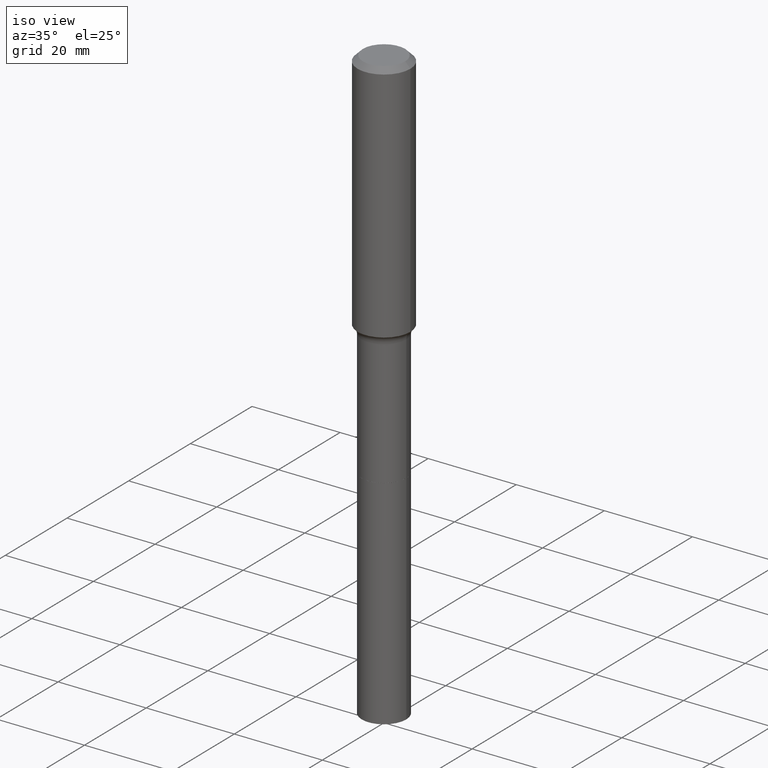
[diagram: clean part render]
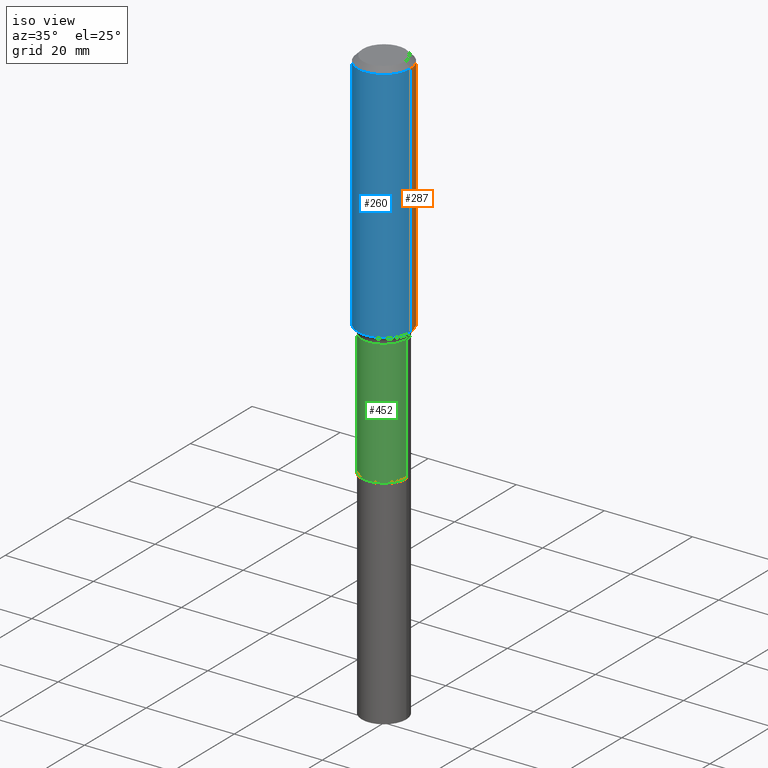
[diagram: same view with three faces highlighted in distinct colors, each labeled with its STEP entity id]
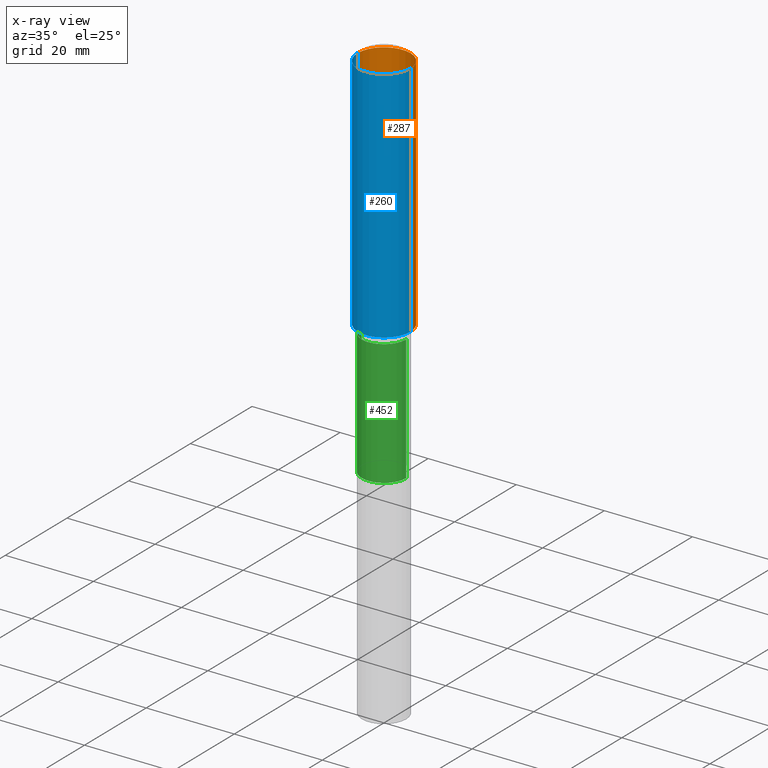
[diagram: x-ray of the same camera — body ghosted, the three highlighted faces saturated]
A machine part, iso view with three faces highlighted in distinct colors.
The next image is the same camera in x-ray (body ghosted, the three faces saturated) — at least one of them is partly hidden behind the body in this view.
Their STEP definitions:

[orange] entity #287 — the highlighted cylindrical surface (edge-blend (fillet) strip) has radius 5.9995 mm, axis along (-0, 0, 1).
#13 = FACE_OUTER_BOUND ( 'NONE', #121, .T. ) ;
#14 = VECTOR ( 'NONE', #498, 39.37007874015748143 ) ;
#51 = CARTESIAN_POINT ( 'NONE',  ( 0.000000000000000000, 0.000000000000000000, 0.000000000000000000 ) ) ;
#55 = CARTESIAN_POINT ( 'NONE',  ( 0.2362000000000002709, -9.234202013156812769E-15, -2.172380572195881321 ) ) ;
#69 = VERTEX_POINT ( 'NONE', #55 ) ;
#87 = DIRECTION ( 'NONE',  ( -2.445468806185136597E-29, 3.491481338843145583E-15, 1.000000000000000000 ) ) ;
#89 = EDGE_CURVE ( 'NONE', #446, #245, #211, .T. ) ;
#97 = DIRECTION ( 'NONE',  ( 1.000000000000000000, -6.982962677686269077E-15, 0.000000000000000000 ) ) ;
#116 = DIRECTION ( 'NONE',  ( -2.445468806185136877E-29, 3.491481338843145188E-15, 1.000000000000000000 ) ) ;
#120 = CIRCLE ( 'NONE', #477, 0.2361999999999999933 ) ;
#121 = EDGE_LOOP ( 'NONE', ( #290, #178, #269, #123 ) ) ;
#123 = ORIENTED_EDGE ( 'NONE', *, *, #159, .F. ) ;
#159 = EDGE_CURVE ( 'NONE', #69, #163, #350, .T. ) ;
#163 = VERTEX_POINT ( 'NONE', #435 ) ;
#178 = ORIENTED_EDGE ( 'NONE', *, *, #89, .T. ) ;
#179 = CARTESIAN_POINT ( 'NONE',  ( -0.2362000000000002709, -5.906524286821956695E-15, -2.172380572195881321 ) ) ;
#190 = DIRECTION ( 'NONE',  ( 1.000000000000000000, -6.982962677686266711E-15, 0.000000000000000000 ) ) ;
#211 = LINE ( 'NONE', #426, #14 ) ;
#215 = VECTOR ( 'NONE', #116, 39.37007874015748143 ) ;
#234 = CARTESIAN_POINT ( 'NONE',  ( 0.2362000000000001321, -1.649375784469497117E-15, 1.151752954443000789E-29 ) ) ;
#245 = VERTEX_POINT ( 'NONE', #483 ) ;
#262 = DIRECTION ( 'NONE',  ( -2.445468806185136597E-29, 3.491481338843145583E-15, 1.000000000000000000 ) ) ;
#269 = ORIENTED_EDGE ( 'NONE', *, *, #404, .F. ) ;
#273 = AXIS2_PLACEMENT_3D ( 'NONE', #51, #262, #413 ) ;
#287 = ADVANCED_FACE ( 'NONE', ( #13 ), #493, .T. ) ;
#290 = ORIENTED_EDGE ( 'NONE', *, *, #353, .T. ) ;
#291 = DIRECTION ( 'NONE',  ( -2.445468806185136597E-29, 3.491481338843145583E-15, 1.000000000000000000 ) ) ;
#333 = CARTESIAN_POINT ( 'NONE',  ( 5.312488924467646188E-29, -7.584826228687314666E-15, -2.172380572195881321 ) ) ;
#350 = LINE ( 'NONE', #234, #215 ) ;
#353 = EDGE_CURVE ( 'NONE', #69, #446, #516, .T. ) ;
#404 = EDGE_CURVE ( 'NONE', #163, #245, #120, .T. ) ;
#413 = DIRECTION ( 'NONE',  ( 1.000000000000000000, -6.982962677686266711E-15, 4.876176775795936353E-29 ) ) ;
#426 = CARTESIAN_POINT ( 'NONE',  ( -0.2362000000000001321, 1.678301941865357577E-15, -1.161852468318209457E-29 ) ) ;
#435 = CARTESIAN_POINT ( 'NONE',  ( 0.2361999999999999933, -1.814313362916447440E-15, -0.04724000000000028177 ) ) ;
#446 = VERTEX_POINT ( 'NONE', #179 ) ;
#477 = AXIS2_PLACEMENT_3D ( 'NONE', #480, #87, #190 ) ;
#480 = CARTESIAN_POINT ( 'NONE',  ( 1.155239464041865506E-30, -1.649375784469511859E-16, -0.04724000000000028177 ) ) ;
#483 = CARTESIAN_POINT ( 'NONE',  ( -0.2361999999999999933, -2.196579961701774424E-15, -0.04724000000000028177 ) ) ;
#493 = CYLINDRICAL_SURFACE ( 'NONE', #273, 0.2362000000000001321 ) ;
#494 = AXIS2_PLACEMENT_3D ( 'NONE', #333, #291, #97 ) ;
#498 = DIRECTION ( 'NONE',  ( -2.445468806185136877E-29, 3.491481338843145188E-15, 1.000000000000000000 ) ) ;
#516 = CIRCLE ( 'NONE', #494, 0.2362000000000002709 ) ;

[blue] entity #260 — the highlighted cylindrical surface (edge-blend (fillet) strip) has radius 5.9995 mm, axis along (-0, 0, 1).
#14 = VECTOR ( 'NONE', #498, 39.37007874015748143 ) ;
#55 = CARTESIAN_POINT ( 'NONE',  ( 0.2362000000000002709, -9.234202013156812769E-15, -2.172380572195881321 ) ) ;
#56 = CIRCLE ( 'NONE', #458, 0.2361999999999999933 ) ;
#68 = DIRECTION ( 'NONE',  ( -2.445468806185136597E-29, 3.491481338843145583E-15, 1.000000000000000000 ) ) ;
#69 = VERTEX_POINT ( 'NONE', #55 ) ;
#86 = ORIENTED_EDGE ( 'NONE', *, *, #89, .F. ) ;
#89 = EDGE_CURVE ( 'NONE', #446, #245, #211, .T. ) ;
#91 = ORIENTED_EDGE ( 'NONE', *, *, #195, .F. ) ;
#116 = DIRECTION ( 'NONE',  ( -2.445468806185136877E-29, 3.491481338843145188E-15, 1.000000000000000000 ) ) ;
#141 = ORIENTED_EDGE ( 'NONE', *, *, #159, .T. ) ;
#155 = DIRECTION ( 'NONE',  ( 1.000000000000000000, -6.982962677686269077E-15, 0.000000000000000000 ) ) ;
#159 = EDGE_CURVE ( 'NONE', #69, #163, #350, .T. ) ;
#163 = VERTEX_POINT ( 'NONE', #435 ) ;
#166 = EDGE_LOOP ( 'NONE', ( #86, #331, #141, #91 ) ) ;
#179 = CARTESIAN_POINT ( 'NONE',  ( -0.2362000000000002709, -5.906524286821956695E-15, -2.172380572195881321 ) ) ;
#195 = EDGE_CURVE ( 'NONE', #245, #163, #56, .T. ) ;
#211 = LINE ( 'NONE', #426, #14 ) ;
#215 = VECTOR ( 'NONE', #116, 39.37007874015748143 ) ;
#217 = AXIS2_PLACEMENT_3D ( 'NONE', #223, #379, #343 ) ;
#223 = CARTESIAN_POINT ( 'NONE',  ( 0.000000000000000000, 0.000000000000000000, 0.000000000000000000 ) ) ;
#234 = CARTESIAN_POINT ( 'NONE',  ( 0.2362000000000001321, -1.649375784469497117E-15, 1.151752954443000789E-29 ) ) ;
#245 = VERTEX_POINT ( 'NONE', #483 ) ;
#260 = ADVANCED_FACE ( 'NONE', ( #454 ), #419, .T. ) ;
#272 = CARTESIAN_POINT ( 'NONE',  ( 1.155239464041865506E-30, -1.649375784469511859E-16, -0.04724000000000028177 ) ) ;
#286 = AXIS2_PLACEMENT_3D ( 'NONE', #509, #460, #155 ) ;
#321 = CIRCLE ( 'NONE', #286, 0.2362000000000002709 ) ;
#331 = ORIENTED_EDGE ( 'NONE', *, *, #459, .T. ) ;
#343 = DIRECTION ( 'NONE',  ( 1.000000000000000000, -6.982962677686266711E-15, 4.876176775795936353E-29 ) ) ;
#350 = LINE ( 'NONE', #234, #215 ) ;
#379 = DIRECTION ( 'NONE',  ( -2.445468806185136597E-29, 3.491481338843145583E-15, 1.000000000000000000 ) ) ;
#387 = DIRECTION ( 'NONE',  ( 1.000000000000000000, -6.982962677686266711E-15, 0.000000000000000000 ) ) ;
#419 = CYLINDRICAL_SURFACE ( 'NONE', #217, 0.2362000000000001321 ) ;
#426 = CARTESIAN_POINT ( 'NONE',  ( -0.2362000000000001321, 1.678301941865357577E-15, -1.161852468318209457E-29 ) ) ;
#435 = CARTESIAN_POINT ( 'NONE',  ( 0.2361999999999999933, -1.814313362916447440E-15, -0.04724000000000028177 ) ) ;
#446 = VERTEX_POINT ( 'NONE', #179 ) ;
#454 = FACE_OUTER_BOUND ( 'NONE', #166, .T. ) ;
#458 = AXIS2_PLACEMENT_3D ( 'NONE', #272, #68, #387 ) ;
#459 = EDGE_CURVE ( 'NONE', #446, #69, #321, .T. ) ;
#460 = DIRECTION ( 'NONE',  ( -2.445468806185136597E-29, 3.491481338843145583E-15, 1.000000000000000000 ) ) ;
#483 = CARTESIAN_POINT ( 'NONE',  ( -0.2361999999999999933, -2.196579961701774424E-15, -0.04724000000000028177 ) ) ;
#498 = DIRECTION ( 'NONE',  ( -2.445468806185136877E-29, 3.491481338843145188E-15, 1.000000000000000000 ) ) ;
#509 = CARTESIAN_POINT ( 'NONE',  ( 5.312488924467646188E-29, -7.584826228687314666E-15, -2.172380572195881321 ) ) ;

[green] entity #452 — the highlighted cylindrical surface (edge-blend (fillet) strip) has radius 5.0495 mm, axis along (-0, 0, 1).
#1 = EDGE_CURVE ( 'NONE', #453, #517, #196, .T. ) ;
#7 = VERTEX_POINT ( 'NONE', #296 ) ;
#33 = CARTESIAN_POINT ( 'NONE',  ( 0.1988000000000000045, -1.388212980324029928E-15, 9.693839430282320098E-30 ) ) ;
#35 = FACE_OUTER_BOUND ( 'NONE', #132, .T. ) ;
#38 = CARTESIAN_POINT ( 'NONE',  ( 0.1988000000000000878, -1.313879342620063844E-14, -3.365499999999999936 ) ) ;
#44 = ORIENTED_EDGE ( 'NONE', *, *, #297, .F. ) ;
#53 = LINE ( 'NONE', #216, #152 ) ;
#76 = AXIS2_PLACEMENT_3D ( 'NONE', #305, #356, #349 ) ;
#81 = AXIS2_PLACEMENT_3D ( 'NONE', #174, #412, #218 ) ;
#93 = VERTEX_POINT ( 'NONE', #38 ) ;
#96 = ORIENTED_EDGE ( 'NONE', *, *, #220, .T. ) ;
#132 = EDGE_LOOP ( 'NONE', ( #44, #161, #96, #407 ) ) ;
#138 = DIRECTION ( 'NONE',  ( -2.445468806185136877E-29, 3.491481338843145188E-15, 1.000000000000000000 ) ) ;
#140 = VECTOR ( 'NONE', #192, 39.37007874015748143 ) ;
#152 = VECTOR ( 'NONE', #138, 39.37007874015748143 ) ;
#161 = ORIENTED_EDGE ( 'NONE', *, *, #512, .T. ) ;
#174 = CARTESIAN_POINT ( 'NONE',  ( 5.487632001079447088E-29, -7.834884124364020406E-15, -2.244000000000000217 ) ) ;
#185 = DIRECTION ( 'NONE',  ( 1.000000000000000000, -6.982962677686269077E-15, 0.000000000000000000 ) ) ;
#192 = DIRECTION ( 'NONE',  ( -2.445468806185136877E-29, 3.491481338843145188E-15, 1.000000000000000000 ) ) ;
#196 = CIRCLE ( 'NONE', #81, 0.1987999999999999490 ) ;
#216 = CARTESIAN_POINT ( 'NONE',  ( -0.1988000000000000045, 1.412558958691079201E-15, -9.778842959426753228E-30 ) ) ;
#218 = DIRECTION ( 'NONE',  ( 1.000000000000000000, -6.982962677686269077E-15, 0.000000000000000000 ) ) ;
#220 = EDGE_CURVE ( 'NONE', #93, #517, #392, .T. ) ;
#231 = CARTESIAN_POINT ( 'NONE',  ( 0.1987999999999999490, -9.223097104688050531E-15, -2.244000000000000217 ) ) ;
#296 = CARTESIAN_POINT ( 'NONE',  ( -0.1988000000000001155, -8.380173326429232201E-15, -3.365499999999999936 ) ) ;
#297 = EDGE_CURVE ( 'NONE', #7, #453, #53, .T. ) ;
#305 = CARTESIAN_POINT ( 'NONE',  ( 0.000000000000000000, 0.000000000000000000, 0.000000000000000000 ) ) ;
#315 = CARTESIAN_POINT ( 'NONE',  ( 8.230225267216076149E-29, -1.175058044587660674E-14, -3.365499999999999936 ) ) ;
#326 = AXIS2_PLACEMENT_3D ( 'NONE', #315, #502, #185 ) ;
#342 = CYLINDRICAL_SURFACE ( 'NONE', #76, 0.1988000000000000045 ) ;
#349 = DIRECTION ( 'NONE',  ( 1.000000000000000000, -6.982962677686266711E-15, 4.876176775795935793E-29 ) ) ;
#356 = DIRECTION ( 'NONE',  ( -2.445468806185136597E-29, 3.491481338843145583E-15, 1.000000000000000000 ) ) ;
#361 = CIRCLE ( 'NONE', #326, 0.1988000000000000878 ) ;
#392 = LINE ( 'NONE', #33, #140 ) ;
#407 = ORIENTED_EDGE ( 'NONE', *, *, #1, .F. ) ;
#412 = DIRECTION ( 'NONE',  ( -2.445468806185136597E-29, 3.491481338843145583E-15, 1.000000000000000000 ) ) ;
#452 = ADVANCED_FACE ( 'NONE', ( #35 ), #342, .T. ) ;
#453 = VERTEX_POINT ( 'NONE', #500 ) ;
#500 = CARTESIAN_POINT ( 'NONE',  ( -0.1987999999999999490, -8.380173326429233779E-15, -2.244000000000000217 ) ) ;
#502 = DIRECTION ( 'NONE',  ( -2.445468806185136597E-29, 3.491481338843145583E-15, 1.000000000000000000 ) ) ;
#512 = EDGE_CURVE ( 'NONE', #7, #93, #361, .T. ) ;
#517 = VERTEX_POINT ( 'NONE', #231 ) ;